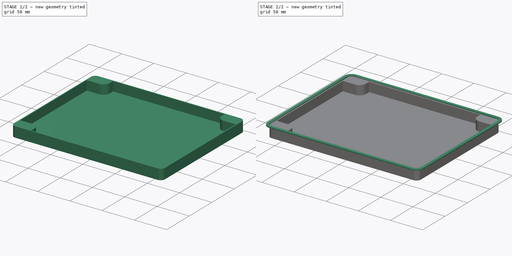
[diagram: build sequence overview — one tinted view per stage of 2, left to right]
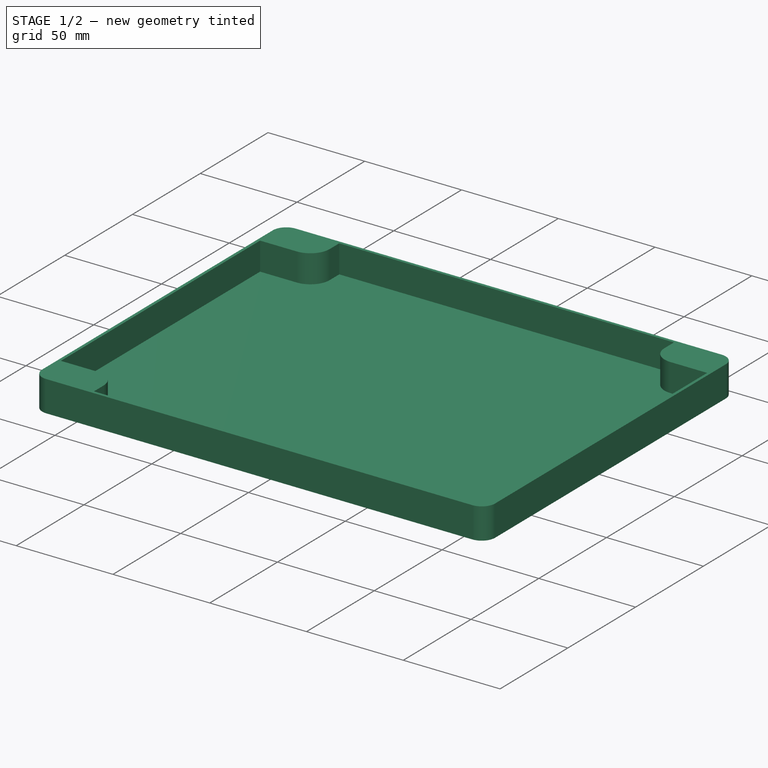
[diagram: stage 1 of 2 — iso view after this stage's code; geometry added in this stage tinted green]
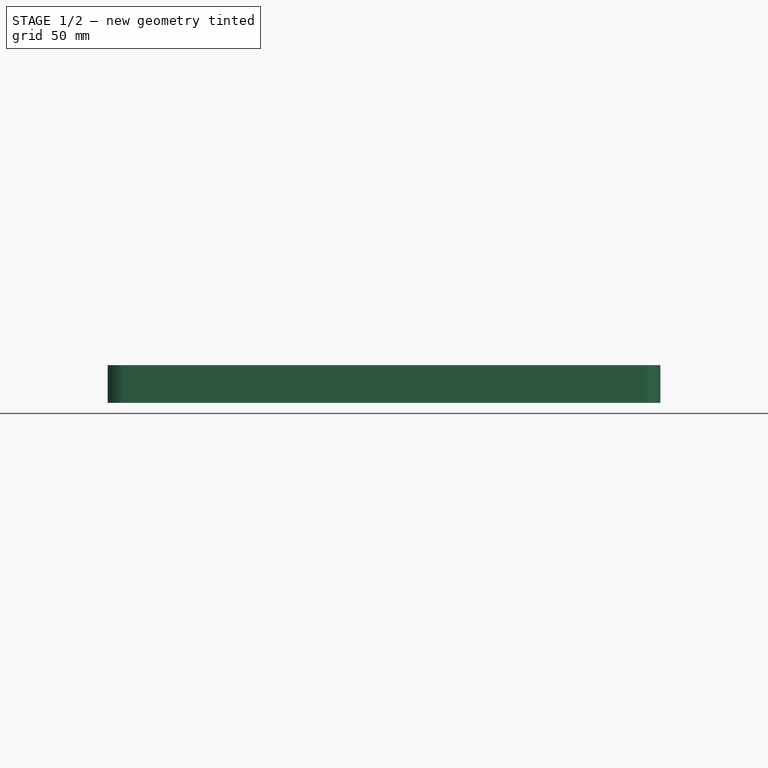
[diagram: stage 1 of 2 — front view after this stage's code; geometry added in this stage tinted green]
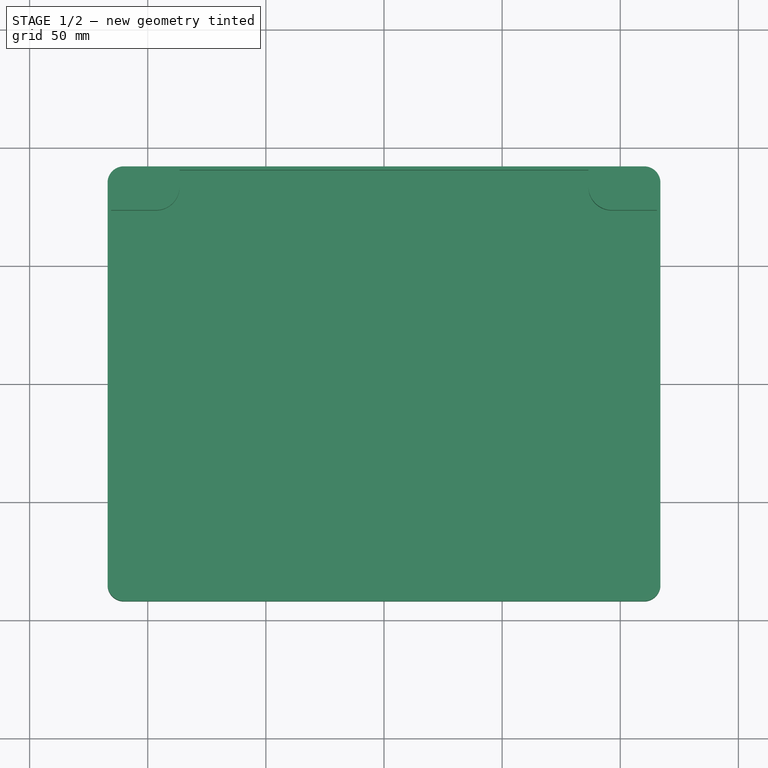
[diagram: stage 1 of 2 — top view after this stage's code; geometry added in this stage tinted green]
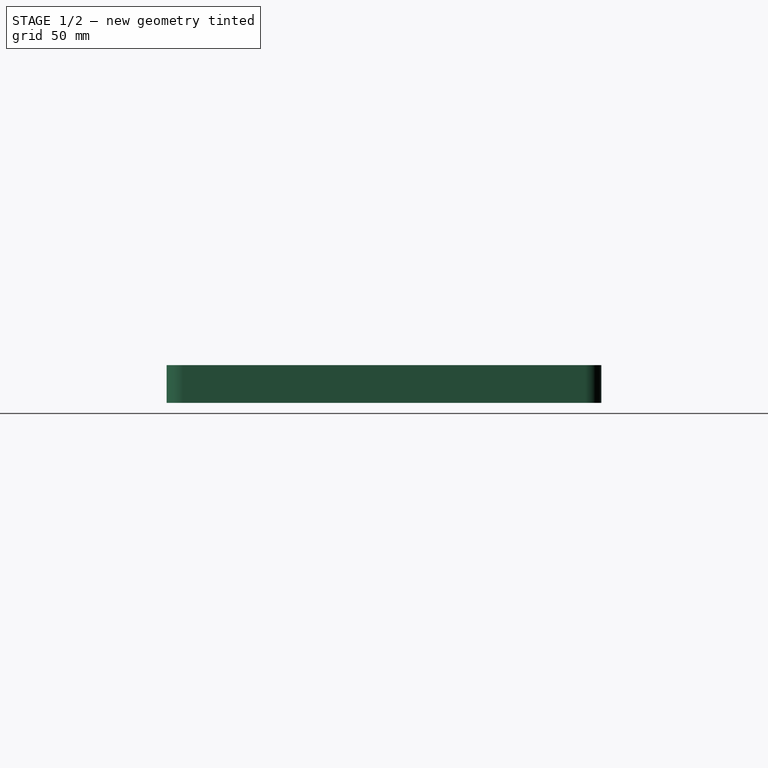
[diagram: stage 1 of 2 — right view after this stage's code; geometry added in this stage tinted green]
FCSTD DOCUMENT  (FreeCAD 0.18R4 (GitTag))
Label: DxnBoxTop
License: All rights reserved
LicenseURL: http://en.wikipedia.org/wiki/All_rights_reserved
objects: Sketcher::SketchObject×4, PartDesign::Pad×1, PartDesign::Pocket×1, PartDesign::AdditivePipe×1, PartDesign::Body×1
note: 11 computed .brp shape members not serialized (recipe doc carries the construction recipe); baked Part::Feature solids carry a one-line shape summary decoded from their .brp

FEATURE [Sketcher::SketchObject] Sketch007  label="InsideContour001"
  MapMode = 5
  Placement = pos=(0,0,16) rot=(0,0,1;0rad)
  sketch-geometry (16):
    g0: LineSegment StartX=-115.5 StartY=73.5 StartZ=0 EndX=-115.5 EndY=-73.5 EndZ=0
    g1: LineSegment StartX=-115.5 StartY=73.5 StartZ=0 EndX=-96.5 EndY=73.5 EndZ=0
    g2: LineSegment StartX=-86.5 StartY=90.5 StartZ=0 EndX=-86.5 EndY=83.5 EndZ=0
    g3: LineSegment StartX=-86.5 StartY=90.5 StartZ=0 EndX=86.5 EndY=90.5 EndZ=0
    g4: LineSegment StartX=86.5 StartY=90.5 StartZ=0 EndX=86.5 EndY=83.5 EndZ=0
    g5: LineSegment StartX=96.5 StartY=73.5 StartZ=0 EndX=115.5 EndY=73.5 EndZ=0
    g6: LineSegment StartX=115.5 StartY=73.5 StartZ=0 EndX=115.5 EndY=-73.5 EndZ=0
    g7: LineSegment StartX=115.5 StartY=-73.5 StartZ=0 EndX=96.5 EndY=-73.5 EndZ=0
    g8: LineSegment StartX=86.5 StartY=-83.5 StartZ=0 EndX=86.5 EndY=-90.5 EndZ=0
    g9: LineSegment StartX=86.5 StartY=-90.5 StartZ=0 EndX=-86.5 EndY=-90.5 EndZ=0
    g10: LineSegment StartX=-86.5 StartY=-90.5 StartZ=0 EndX=-86.5 EndY=-83.5 EndZ=0
    g11: LineSegment StartX=-115.5 StartY=-73.5 StartZ=0 EndX=-96.5 EndY=-73.5 EndZ=0
    g12: ArcOfCircle CenterX=-96.5 CenterY=83.5 CenterZ=0 NormalX=0 NormalY=0 NormalZ=1 AngleXU=0 Radius=10 StartAngle=4.71239 EndAngle=6.28319
    g13: ArcOfCircle CenterX=96.5 CenterY=83.5 CenterZ=0 NormalX=0 NormalY=0 NormalZ=1 AngleXU=0 Radius=10 StartAngle=3.14159 EndAngle=4.71239
    g14: ArcOfCircle CenterX=96.5 CenterY=-83.5 CenterZ=0 NormalX=0 NormalY=0 NormalZ=1 AngleXU=0 Radius=10 StartAngle=1.5708 EndAngle=3.14159
    g15: ArcOfCircle CenterX=-96.5 CenterY=-83.5 CenterZ=0 NormalX=0 NormalY=0 NormalZ=1 AngleXU=0 Radius=10 StartAngle=-9e-16 EndAngle=1.5708
  constraints (35):
    c: Coincident(g5,g6)
    c: Coincident(g4,g3)
    c: Horizontal(g7)
    c: Horizontal(g11)
    c: Horizontal(g1)
    c: Horizontal(g5)
    c: Vertical(g4)
    c: Coincident(g2,g3)
    c: Coincident(g1,g0)
    c: Coincident(g0,g11)
    c: Coincident(g10,g9)
    c: Coincident(g8,g9)
    c: Coincident(g7,g6)
    c: Symmetric(g13,g12,g-2)
    c: Symmetric(g14,g15,g-2)
    c: Symmetric(g14,g13,g-1)
    c: Symmetric(g3,g2,g-2)
    c: Symmetric(g0,g5,g-2)
    c: Symmetric(g0,g6,g-2)
    c: Symmetric(g5,g6,g-1)
    c: Symmetric(g8,g9,g-2)
    c: Symmetric(g8,g3,g-1)
    c: Tangent(g4,g13) = -1.5708
    c: Tangent(g13,g5) = -1.5708
    c: Tangent(g12,g2) = 1.5708
    c: Tangent(g12,g1) = -1.5708
    c: Tangent(g15,g11) = 1.5708
    c: Tangent(g15,g10) = -1.5708
    c: Tangent(g14,g8) = -1.5708
    c: Tangent(g14,g7) = -1.5708
    c: DistanceY(g-1,g3) = 90.5
    c: DistanceX(g-1,g5) = 115.5
    c: DistanceY(g5,g3) = 17
    c: DistanceX(g4,g5) = 29
    c: DistanceY(g4,g3) = 7
FEATURE [Sketcher::SketchObject] Sketch008
  Placement = pos=(0,0,0) rot=(1,0,0;1.5708rad)
  Support = -> [XZ_Plane001]
  sketch-geometry (6):
    g0: LineSegment StartX=117 StartY=14.5 StartZ=0 EndX=117 EndY=16 EndZ=0
    g1: LineSegment StartX=118.5 StartY=16 StartZ=0 EndX=121.5 EndY=16 EndZ=0
    g2: LineSegment StartX=121.5 StartY=16 StartZ=0 EndX=121.5 EndY=17.5 EndZ=0
    g3: LineSegment StartX=121.5 StartY=17.5 StartZ=0 EndX=117 EndY=17.5 EndZ=0
    g4: LineSegment StartX=117 StartY=17.5 StartZ=0 EndX=117 EndY=16 EndZ=0
    g5: ArcOfCircle CenterX=118.5 CenterY=14.5 CenterZ=0 NormalX=0 NormalY=0 NormalZ=1 AngleXU=0 Radius=1.5 StartAngle=1.5708 EndAngle=3.14159
  constraints (18):
    c: Coincident(g3,g4)
    c: Coincident(g1,g2)
    c: Coincident(g2,g3)
    c: Horizontal(g3)
    c: Horizontal(g1)
    c: Vertical(g4)
    c: Vertical(g2)
    c: Vertical(g0)
    c: Equal(g4,g2)
    c: DistanceY(g1,g2) = 1.5
    c: Coincident(g5,g0)
    c: Tangent(g5,g1) = 1.5708
    c: DistanceX(g-1,g0) = 117
    c: DistanceY(g-1,g0) = 16
    c: DistanceX(g0,g1) = 4.5
    c: Coincident(g4,g0)
    c: DistanceY(g0,g0) = 1.5
    c: DistanceX(g1,g1) = 3
FEATURE [Sketcher::SketchObject] Sketch006  label="OutsideContour001"
  sketch-geometry (8):
    g0: ArcOfCircle CenterX=-110.08 CenterY=85.08 CenterZ=0 NormalX=0 NormalY=0 NormalZ=1 AngleXU=0 Radius=6.92 StartAngle=1.5708 EndAngle=3.14159
    g1: ArcOfCircle CenterX=110.08 CenterY=85.08 CenterZ=0 NormalX=0 NormalY=0 NormalZ=1 AngleXU=0 Radius=6.92 StartAngle=-9e-16 EndAngle=1.5708
    g2: ArcOfCircle CenterX=110.08 CenterY=-85.08 CenterZ=0 NormalX=0 NormalY=0 NormalZ=1 AngleXU=0 Radius=6.92 StartAngle=4.71239 EndAngle=6.28319
    g3: ArcOfCircle CenterX=-110.08 CenterY=-85.08 CenterZ=0 NormalX=0 NormalY=0 NormalZ=1 AngleXU=0 Radius=6.92 StartAngle=3.14159 EndAngle=4.71239
    g4: LineSegment StartX=-110.08 StartY=92 StartZ=0 EndX=110.08 EndY=92 EndZ=0
    g5: LineSegment StartX=117 StartY=85.08 StartZ=0 EndX=117 EndY=-85.08 EndZ=0
    g6: LineSegment StartX=110.08 StartY=-92 StartZ=0 EndX=-110.08 EndY=-92 EndZ=0
    g7: LineSegment StartX=-117 StartY=-85.08 StartZ=0 EndX=-117 EndY=85.08 EndZ=0
  constraints (17):
    c: Horizontal(g4)
    c: Horizontal(g6)
    c: Vertical(g5)
    c: Tangent(g4,g1) = 1.5708
    c: Tangent(g1,g5) = 1.5708
    c: Tangent(g5,g2) = 1.5708
    c: Tangent(g0,g4) = 1.5708
    c: Tangent(g0,g7) = 1.5708
    c: Tangent(g3,g7) = 1.5708
    c: Tangent(g6,g3) = 1.5708
    c: Tangent(g2,g6) = 1.5708
    c: Symmetric(g1,g0,g-2)
    c: Symmetric(g1,g2,g-1)
    c: Symmetric(g2,g3,g-2)
    c: DistanceX(g-1,g1) = 117
    c: DistanceY(g-1,g1) = 92
    c: DistanceX(g-1,g1) = 110.08
FEATURE [Sketcher::SketchObject] Sketch009  label="OutsideContour002"
  Placement = pos=(0,0,16) rot=(0,0,1;0rad)
  sketch-geometry (8):
    g0: ArcOfCircle CenterX=-110.08 CenterY=85.08 CenterZ=0 NormalX=0 NormalY=0 NormalZ=1 AngleXU=0 Radius=6.92 StartAngle=1.5708 EndAngle=3.14159
    g1: ArcOfCircle CenterX=110.08 CenterY=85.08 CenterZ=0 NormalX=0 NormalY=0 NormalZ=1 AngleXU=0 Radius=6.92 StartAngle=-9e-16 EndAngle=1.5708
    g2: ArcOfCircle CenterX=110.08 CenterY=-85.08 CenterZ=0 NormalX=0 NormalY=0 NormalZ=1 AngleXU=0 Radius=6.92 StartAngle=4.71239 EndAngle=6.28319
    g3: ArcOfCircle CenterX=-110.08 CenterY=-85.08 CenterZ=0 NormalX=0 NormalY=0 NormalZ=1 AngleXU=0 Radius=6.92 StartAngle=3.14159 EndAngle=4.71239
    g4: LineSegment StartX=-110.08 StartY=92 StartZ=0 EndX=110.08 EndY=92 EndZ=0
    g5: LineSegment StartX=117 StartY=85.08 StartZ=0 EndX=117 EndY=-85.08 EndZ=0
    g6: LineSegment StartX=110.08 StartY=-92 StartZ=0 EndX=-110.08 EndY=-92 EndZ=0
    g7: LineSegment StartX=-117 StartY=-85.08 StartZ=0 EndX=-117 EndY=85.08 EndZ=0
  constraints (17):
    c: Horizontal(g4)
    c: Horizontal(g6)
    c: Vertical(g5)
    c: Tangent(g4,g1) = 1.5708
    c: Tangent(g1,g5) = 1.5708
    c: Tangent(g5,g2) = 1.5708
    c: Tangent(g0,g4) = 1.5708
    c: Tangent(g0,g7) = 1.5708
    c: Tangent(g3,g7) = 1.5708
    c: Tangent(g6,g3) = 1.5708
    c: Tangent(g2,g6) = 1.5708
    c: Symmetric(g1,g0,g-2)
    c: Symmetric(g1,g2,g-1)
    c: Symmetric(g2,g3,g-2)
    c: DistanceX(g-1,g1) = 117
    c: DistanceY(g-1,g1) = 92
    c: DistanceX(g-1,g1) = 110.08
FEATURE [PartDesign::Pad] Pad003
  Length = 16
  Length2 = 100
  Profile = -> Sketch006
  Type = 0
FEATURE [PartDesign::Pocket] Pocket002
  BaseFeature = -> Pad003
  Length = 14.5
  Length2 = 100
  Profile = -> Sketch007
  Type = 0
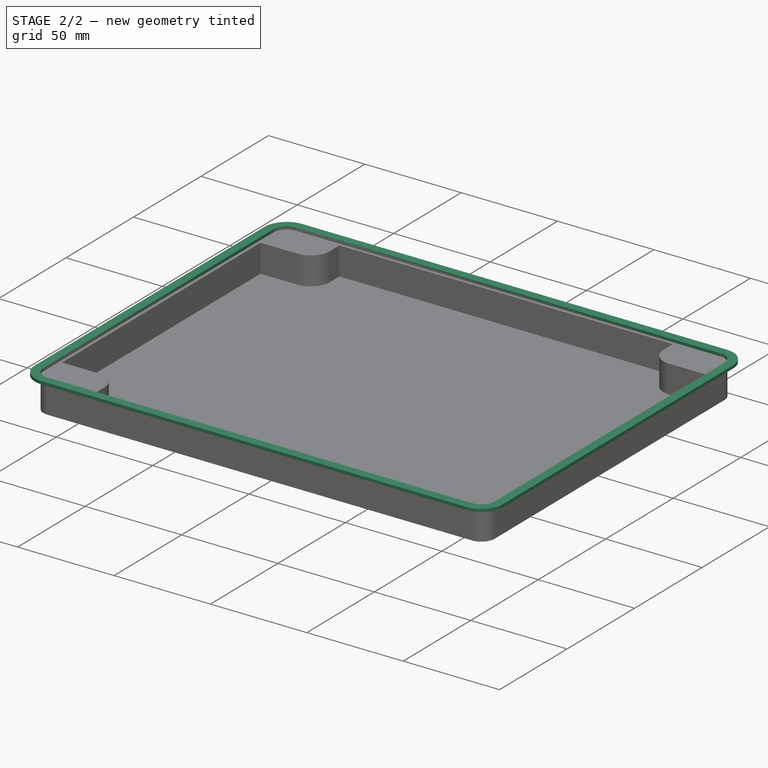
[diagram: stage 2 of 2 — iso view after this stage's code; geometry added in this stage tinted green]
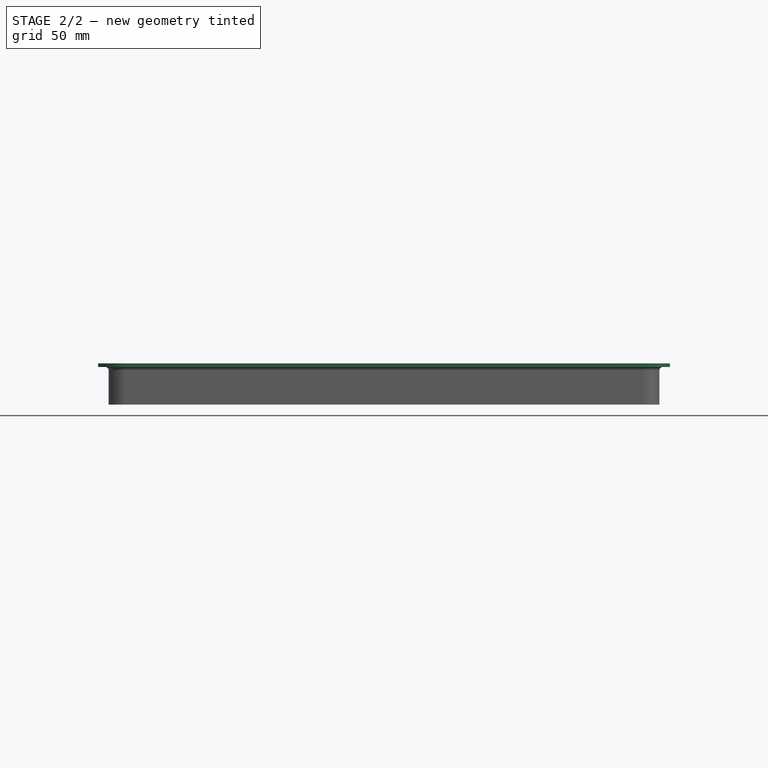
[diagram: stage 2 of 2 — front view after this stage's code; geometry added in this stage tinted green]
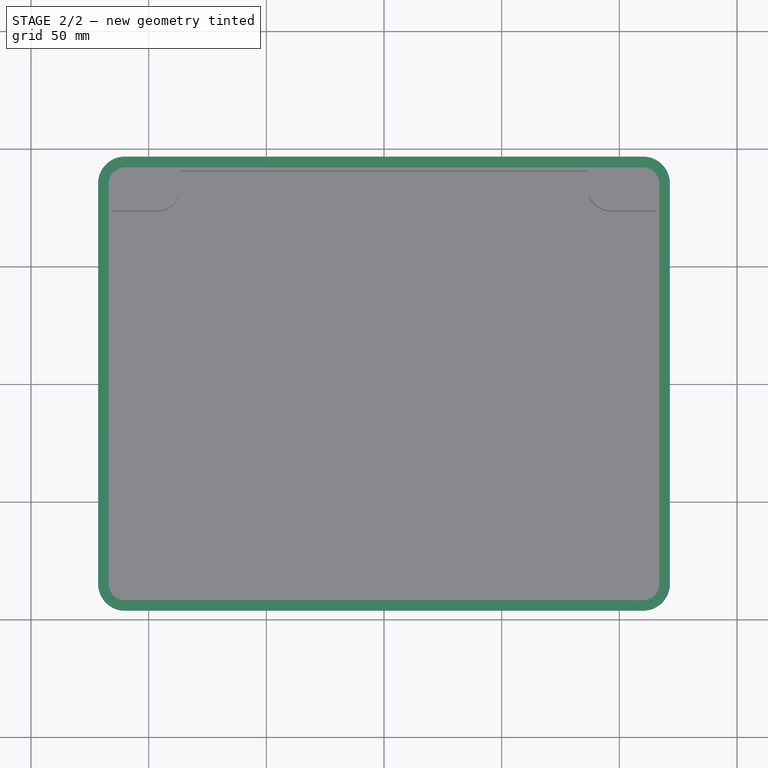
[diagram: stage 2 of 2 — top view after this stage's code; geometry added in this stage tinted green]
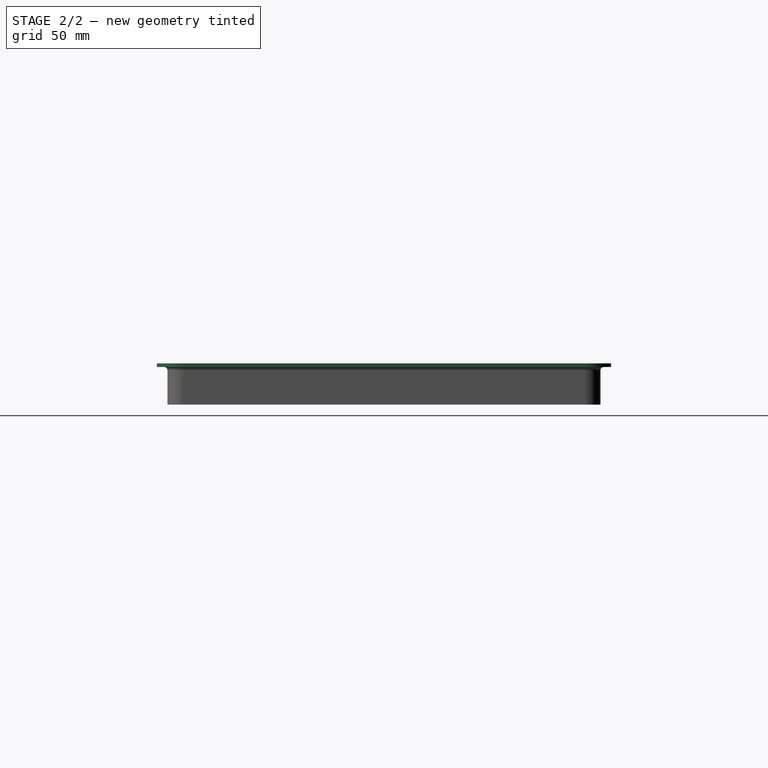
[diagram: stage 2 of 2 — right view after this stage's code; geometry added in this stage tinted green]
FEATURE [PartDesign::AdditivePipe] AdditivePipe001
  AuxilleryCurvelinear = true
  AuxillerySpineTangent = false
  BaseFeature = -> Pocket002
  Binormal = (0,0,0)
  Mode = 0
  Profile = -> Sketch008
  Spine = -> Sketch009
  SpineTangent = false
  Transformation = 0
  Transition = 0
FEATURE [PartDesign::Body] Body001  label="Top"
  Group = -> [Sketch006,Pad003,Sketch007,Pocket002,Sketch008,Sketch009,AdditivePipe001]
  Origin = -> Origin001
  Tip = -> AdditivePipe001
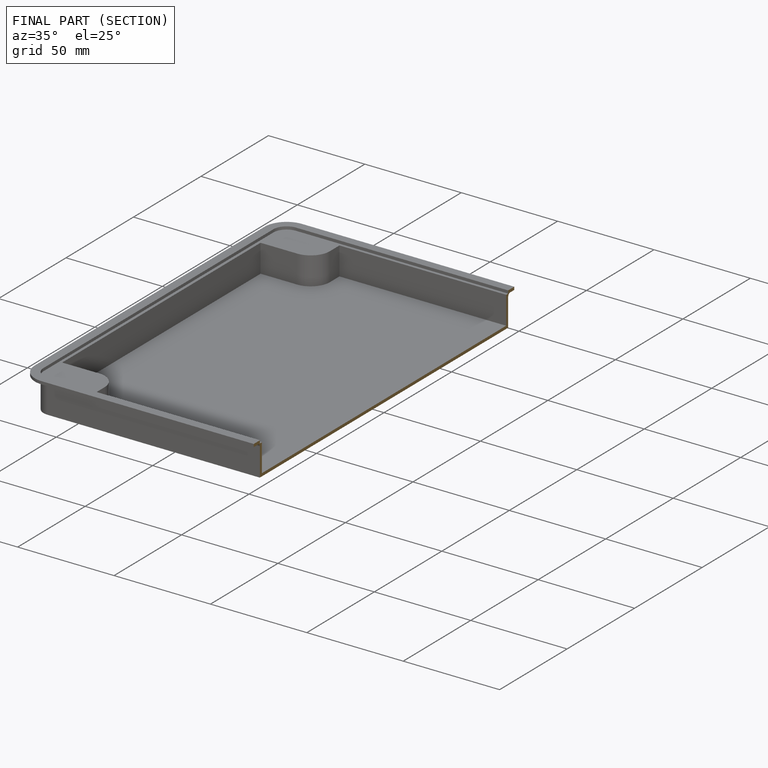
[diagram: finished part — half-section view (interior)]
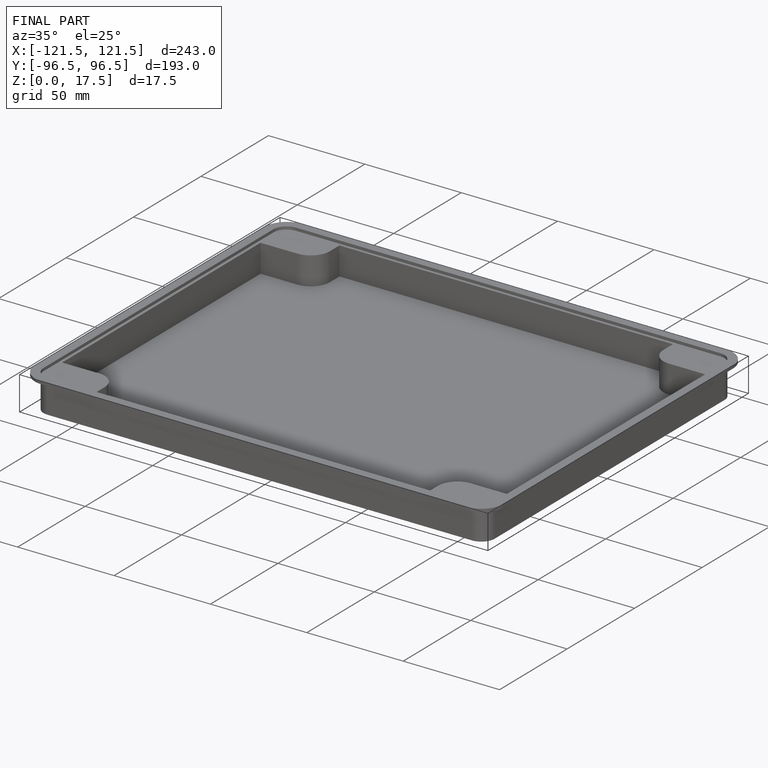
[diagram: finished part — iso view with bounding-box wireframe]
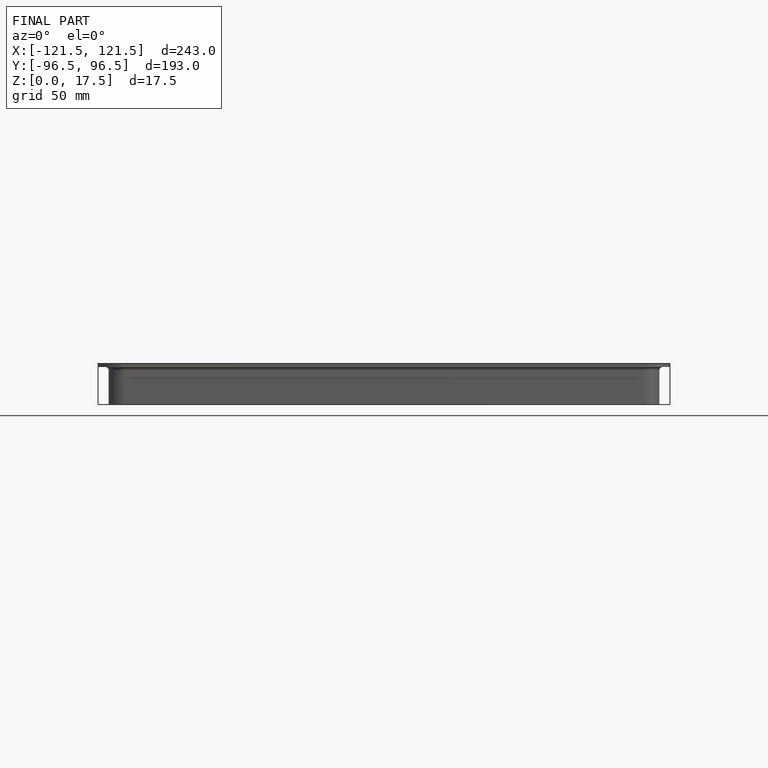
[diagram: finished part — front view with bounding-box wireframe]
